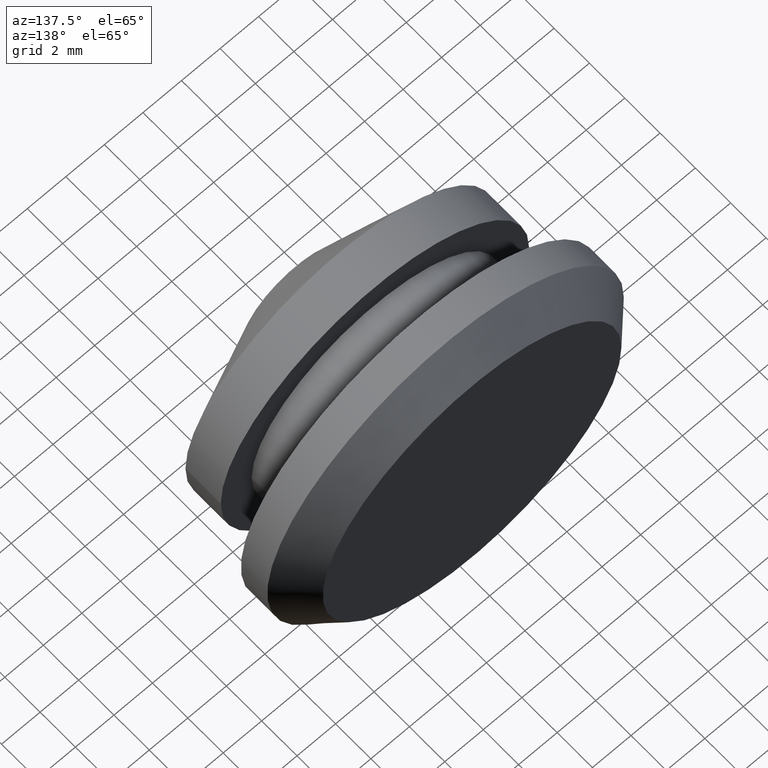
[diagram: clean part render]
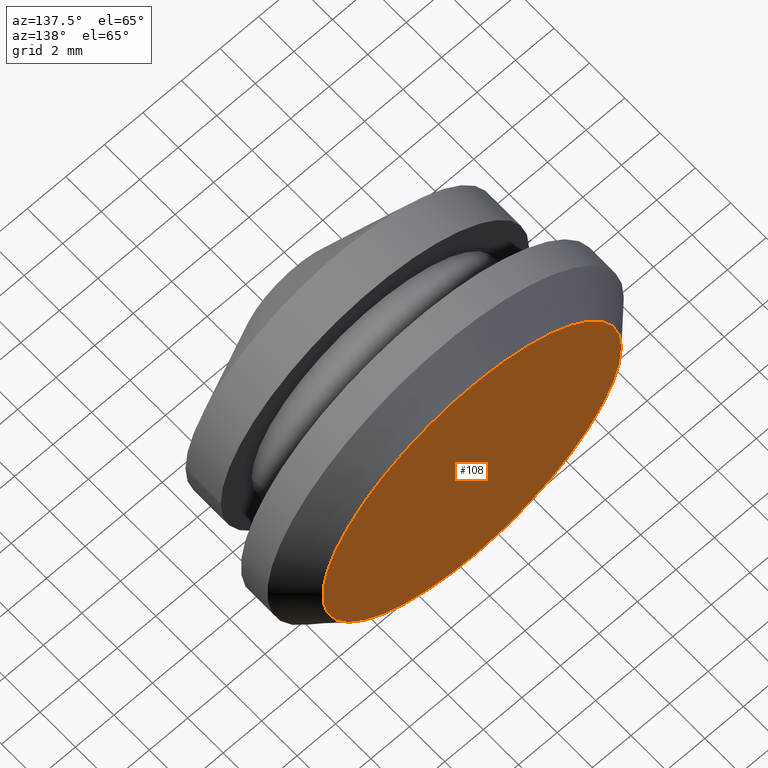
[diagram: same view with one face highlighted and labeled with its STEP entity id]
A machine part, auxiliary view. The second image highlights one B-rep face of the part: STEP entity #108.
In plain terms, the highlighted planar face has unit normal (0, 1, 0).
Its self-contained STEP definition (entity closure, byte-faithful):
#15=PLANE('',#123);
#33=FACE_OUTER_BOUND('',#45,.T.);
#45=EDGE_LOOP('',(#90));
#60=CIRCLE('',#120,7.75);
#69=VERTEX_POINT('',#181);
#78=EDGE_CURVE('',#69,#69,#60,.T.);
#90=ORIENTED_EDGE('',*,*,#78,.F.);
#108=ADVANCED_FACE('',(#33),#15,.T.);
#120=AXIS2_PLACEMENT_3D('',#182,#143,#144);
#123=AXIS2_PLACEMENT_3D('',#186,#149,#150);
#143=DIRECTION('center_axis',(0.,-1.,0.));
#144=DIRECTION('ref_axis',(1.,0.,0.));
#149=DIRECTION('center_axis',(0.,1.,0.));
#150=DIRECTION('ref_axis',(0.,0.,1.));
#181=CARTESIAN_POINT('',(-7.75,3.,-9.49101269339199E-16));
#182=CARTESIAN_POINT('Origin',(0.,3.,0.));
#186=CARTESIAN_POINT('Origin',(4.94480226668566E-16,3.,-2.00040184617145E-16));